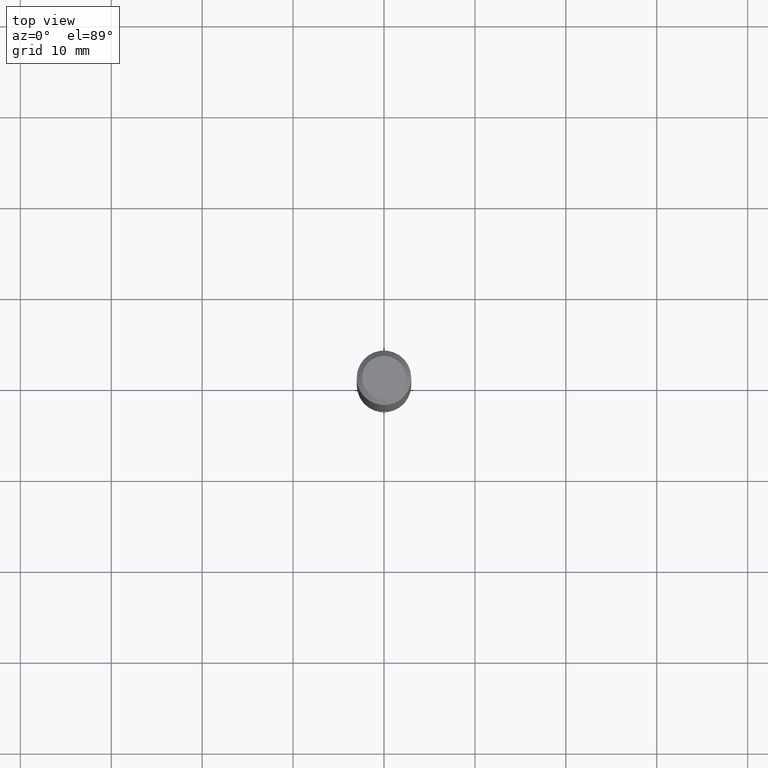
[diagram: clean part render]
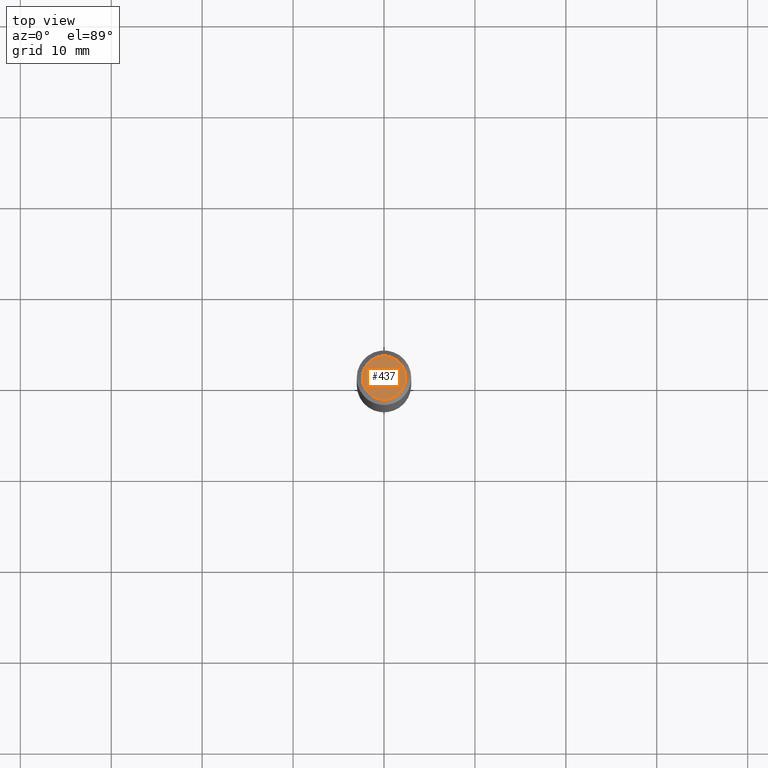
[diagram: same view with one face highlighted and labeled with its STEP entity id]
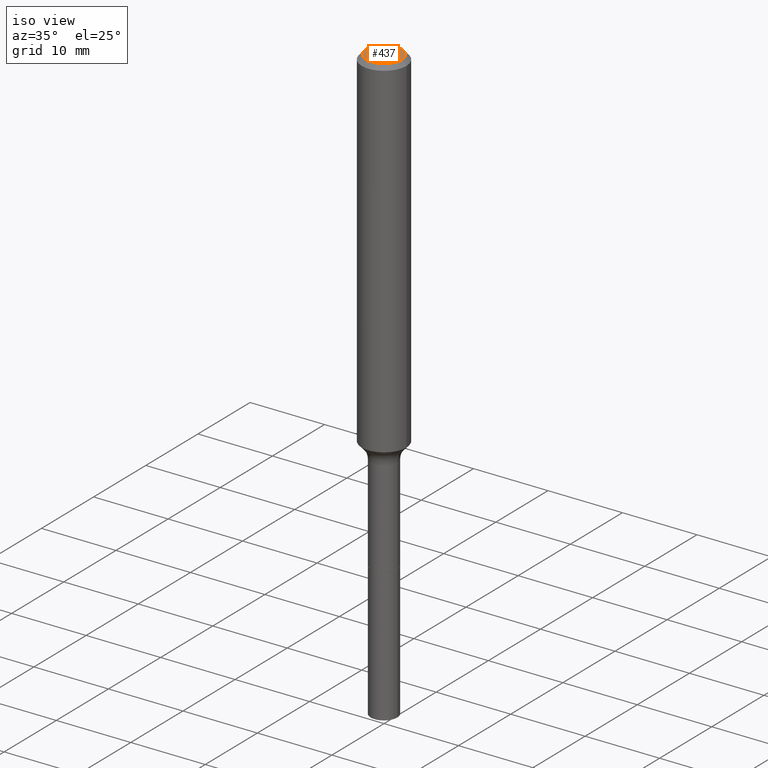
[diagram: same view with one face highlighted and labeled with its STEP entity id]
A machine part, top view. The second image highlights one B-rep face of the part: STEP entity #437.
A second angle (iso view) of the same face is appended — the face is thin or edge-on in the first view.
In plain terms, the highlighted planar face has unit normal (0, -0, -1).
Its self-contained STEP definition (entity closure, byte-faithful):
#2 = DIRECTION ( 'NONE',  ( 1.000000000000000000, -6.982962677686267499E-15, 4.875432709231658792E-29 ) ) ;
#11 = ORIENTED_EDGE ( 'NONE', *, *, #452, .T. ) ;
#33 = VERTEX_POINT ( 'NONE', #236 ) ;
#37 = DIRECTION ( 'NONE',  ( -2.445468806185136597E-29, 3.491481338843145583E-15, 1.000000000000000000 ) ) ;
#70 = DIRECTION ( 'NONE',  ( -2.445468806185136597E-29, 3.491481338843145583E-15, 1.000000000000000000 ) ) ;
#107 = ORIENTED_EDGE ( 'NONE', *, *, #220, .T. ) ;
#129 = DIRECTION ( 'NONE',  ( -1.000000000000000000, 6.982962677686265922E-15, -4.876176775795935793E-29 ) ) ;
#166 = CIRCLE ( 'NONE', #453, 0.09447999999999998066 ) ;
#220 = EDGE_CURVE ( 'NONE', #421, #33, #342, .T. ) ;
#236 = CARTESIAN_POINT ( 'NONE',  ( -0.09447999999999998066, 7.009847083995354710E-16, -3.085620075132147757E-17 ) ) ;
#242 = FACE_OUTER_BOUND ( 'NONE', #376, .T. ) ;
#270 = CARTESIAN_POINT ( 'NONE',  ( 7.545787641473140628E-46, -1.077338491108201769E-31, -3.085620075131671975E-17 ) ) ;
#335 = CARTESIAN_POINT ( 'NONE',  ( 3.772893820736570314E-46, -5.386692455541008845E-32, -1.542810037565835988E-17 ) ) ;
#342 = CIRCLE ( 'NONE', #364, 0.09447999999999998066 ) ;
#355 = CARTESIAN_POINT ( 'NONE',  ( 7.545787641473140628E-46, -1.077338491108201769E-31, -3.085620075131671975E-17 ) ) ;
#364 = AXIS2_PLACEMENT_3D ( 'NONE', #270, #70, #499 ) ;
#369 = PLANE ( 'NONE',  #493 ) ;
#376 = EDGE_LOOP ( 'NONE', ( #11, #107 ) ) ;
#391 = DIRECTION ( 'NONE',  ( 2.438088387897960049E-29, -3.491481338843145188E-15, -1.000000000000000000 ) ) ;
#421 = VERTEX_POINT ( 'NONE', #432 ) ;
#432 = CARTESIAN_POINT ( 'NONE',  ( 0.09447999999999998066, -7.704367267948738690E-16, -3.085620075131172158E-17 ) ) ;
#437 = ADVANCED_FACE ( 'NONE', ( #242 ), #369, .F. ) ;
#452 = EDGE_CURVE ( 'NONE', #33, #421, #166, .T. ) ;
#453 = AXIS2_PLACEMENT_3D ( 'NONE', #355, #37, #2 ) ;
#493 = AXIS2_PLACEMENT_3D ( 'NONE', #335, #391, #129 ) ;
#499 = DIRECTION ( 'NONE',  ( 1.000000000000000000, -6.982962677686267499E-15, 4.875432709231658792E-29 ) ) ;